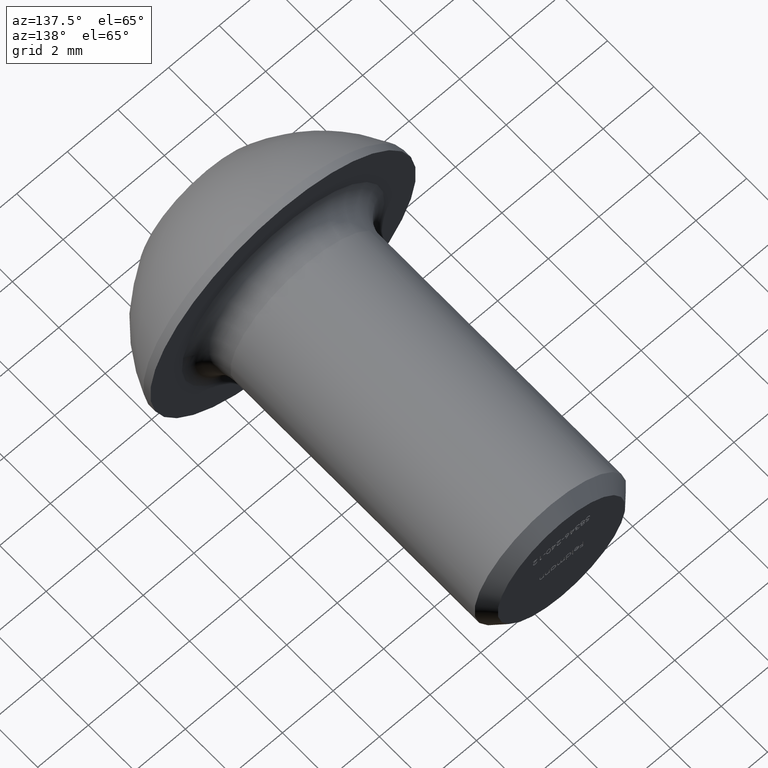
[diagram: clean part render]
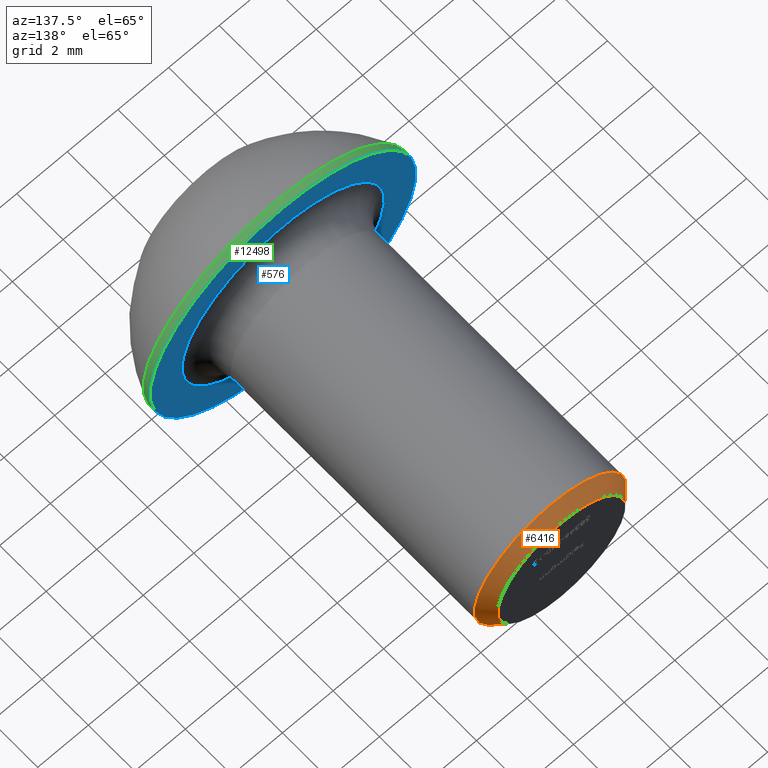
[diagram: same view with three faces highlighted in distinct colors, each labeled with its STEP entity id]
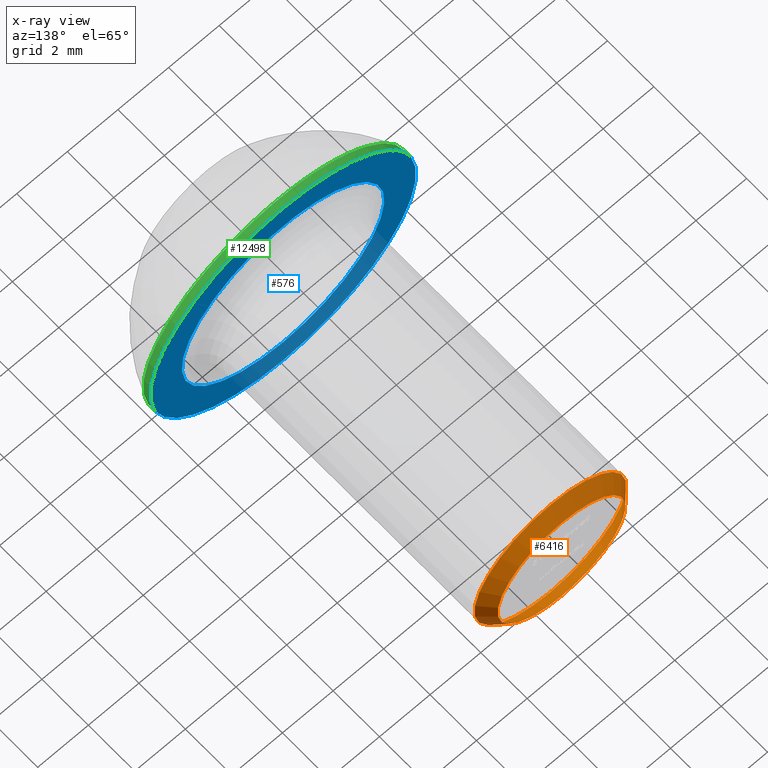
[diagram: x-ray of the same camera — body ghosted, the three highlighted faces saturated]
A machine part, auxiliary view with three faces highlighted in distinct colors.
The next image is the same camera in x-ray (body ghosted, the three faces saturated) — at least one of them is partly hidden behind the body in this view.
Their STEP definitions:

[orange] entity #6416 — the highlighted conical surface has half-angle 45 deg.
#462 = CARTESIAN_POINT ( 'NONE',  ( 0.0000000000000000000, 14.82270000000000800, -2.999999999999996400 ) ) ;
#1107 = DIRECTION ( 'NONE',  ( 0.0000000000000000000, 0.0000000000000000000, -1.000000000000000000 ) ) ;
#1665 = FACE_BOUND ( 'NONE', #9125, .T. ) ;
#2389 = CARTESIAN_POINT ( 'NONE',  ( 0.0000000000000000000, 15.30000000000000800, 0.0000000000000000000 ) ) ;
#3469 = CARTESIAN_POINT ( 'NONE',  ( 0.0000000000000000000, 14.82270000000000800, 0.0000000000000000000 ) ) ;
#3493 = CIRCLE ( 'NONE', #10737, 2.999999999999996400 ) ;
#3623 = DIRECTION ( 'NONE',  ( 0.0000000000000000000, 0.0000000000000000000, -1.000000000000000000 ) ) ;
#4521 = CIRCLE ( 'NONE', #9684, 2.522700000000003500 ) ;
#4915 = AXIS2_PLACEMENT_3D ( 'NONE', #2389, #9517, #3623 ) ;
#5231 = DIRECTION ( 'NONE',  ( 0.0000000000000000000, 0.0000000000000000000, -1.000000000000000000 ) ) ;
#5287 = CARTESIAN_POINT ( 'NONE',  ( 0.0000000000000000000, 15.30000000000000800, 0.0000000000000000000 ) ) ;
#5856 = VERTEX_POINT ( 'NONE', #462 ) ;
#6082 = CONICAL_SURFACE ( 'NONE', #4915, 2.522700000000003500, 0.7853981633974410600 ) ;
#6416 = ADVANCED_FACE ( 'NONE', ( #8681, #1665 ), #6082, .T. ) ;
#6791 = EDGE_CURVE ( 'NONE', #5856, #5856, #3493, .T. ) ;
#7468 = DIRECTION ( 'NONE',  ( -0.0000000000000000000, -1.000000000000000000, -0.0000000000000000000 ) ) ;
#8681 = FACE_OUTER_BOUND ( 'NONE', #10368, .T. ) ;
#9125 = EDGE_LOOP ( 'NONE', ( #9547 ) ) ;
#9517 = DIRECTION ( 'NONE',  ( -0.0000000000000000000, -1.000000000000000000, -0.0000000000000000000 ) ) ;
#9547 = ORIENTED_EDGE ( 'NONE', *, *, #12990, .T. ) ;
#9684 = AXIS2_PLACEMENT_3D ( 'NONE', #5287, #7468, #5231 ) ;
#10368 = EDGE_LOOP ( 'NONE', ( #12231 ) ) ;
#10737 = AXIS2_PLACEMENT_3D ( 'NONE', #3469, #11688, #1107 ) ;
#11688 = DIRECTION ( 'NONE',  ( -0.0000000000000000000, -1.000000000000000000, -0.0000000000000000000 ) ) ;
#12231 = ORIENTED_EDGE ( 'NONE', *, *, #6791, .F. ) ;
#12291 = CARTESIAN_POINT ( 'NONE',  ( 0.0000000000000000000, 15.30000000000000800, -2.522700000000003500 ) ) ;
#12658 = VERTEX_POINT ( 'NONE', #12291 ) ;
#12990 = EDGE_CURVE ( 'NONE', #12658, #12658, #4521, .T. ) ;

[blue] entity #576 — the highlighted planar face has unit normal (0, -1, -0).
#318 = CIRCLE ( 'NONE', #8803, 5.249999999999999100 ) ;
#576 = ADVANCED_FACE ( 'NONE', ( #4627, #2970 ), #3347, .F. ) ;
#2561 = CIRCLE ( 'NONE', #3335, 3.999999999999998200 ) ;
#2970 = FACE_OUTER_BOUND ( 'NONE', #6392, .T. ) ;
#3144 = DIRECTION ( 'NONE',  ( -0.0000000000000000000, -1.000000000000000000, -0.0000000000000000000 ) ) ;
#3335 = AXIS2_PLACEMENT_3D ( 'NONE', #13732, #3144, #10318 ) ;
#3347 = PLANE ( 'NONE',  #15106 ) ;
#4259 = EDGE_LOOP ( 'NONE', ( #9875 ) ) ;
#4352 = CARTESIAN_POINT ( 'NONE',  ( 0.0000000000000000000, 3.299999999999999800, 0.0000000000000000000 ) ) ;
#4548 = VERTEX_POINT ( 'NONE', #14626 ) ;
#4627 = FACE_BOUND ( 'NONE', #4259, .T. ) ;
#5751 = DIRECTION ( 'NONE',  ( 0.0000000000000000000, -1.000000000000000000, -0.0000000000000000000 ) ) ;
#6392 = EDGE_LOOP ( 'NONE', ( #7671 ) ) ;
#7322 = VERTEX_POINT ( 'NONE', #12191 ) ;
#7671 = ORIENTED_EDGE ( 'NONE', *, *, #10248, .F. ) ;
#8048 = DIRECTION ( 'NONE',  ( 0.0000000000000000000, 0.0000000000000000000, -1.000000000000000000 ) ) ;
#8803 = AXIS2_PLACEMENT_3D ( 'NONE', #4352, #10287, #9207 ) ;
#9207 = DIRECTION ( 'NONE',  ( 0.0000000000000000000, 0.0000000000000000000, -1.000000000000000000 ) ) ;
#9875 = ORIENTED_EDGE ( 'NONE', *, *, #13408, .T. ) ;
#10248 = EDGE_CURVE ( 'NONE', #7322, #7322, #318, .T. ) ;
#10287 = DIRECTION ( 'NONE',  ( -0.0000000000000000000, -1.000000000000000000, -0.0000000000000000000 ) ) ;
#10318 = DIRECTION ( 'NONE',  ( 0.0000000000000000000, 0.0000000000000000000, -1.000000000000000000 ) ) ;
#11565 = CARTESIAN_POINT ( 'NONE',  ( 2.999999999999999100, 3.299999999999999800, 0.0000000000000000000 ) ) ;
#12191 = CARTESIAN_POINT ( 'NONE',  ( 0.0000000000000000000, 3.299999999999999800, -5.249999999999999100 ) ) ;
#13408 = EDGE_CURVE ( 'NONE', #4548, #4548, #2561, .T. ) ;
#13732 = CARTESIAN_POINT ( 'NONE',  ( 0.0000000000000000000, 3.299999999999999800, 0.0000000000000000000 ) ) ;
#14626 = CARTESIAN_POINT ( 'NONE',  ( 0.0000000000000000000, 3.299999999999999800, -3.999999999999998200 ) ) ;
#15106 = AXIS2_PLACEMENT_3D ( 'NONE', #11565, #5751, #8048 ) ;

[green] entity #12498 — the highlighted cylindrical surface (bore or boss wall) has radius 5.25 mm, axis along (-0, -1, -0).
#318 = CIRCLE ( 'NONE', #8803, 5.249999999999999100 ) ;
#1402 = ORIENTED_EDGE ( 'NONE', *, *, #10248, .T. ) ;
#1667 = CARTESIAN_POINT ( 'NONE',  ( 0.0000000000000000000, 0.0000000000000000000, 0.0000000000000000000 ) ) ;
#1717 = DIRECTION ( 'NONE',  ( 0.0000000000000000000, 0.0000000000000000000, -1.000000000000000000 ) ) ;
#3000 = DIRECTION ( 'NONE',  ( -0.0000000000000000000, -1.000000000000000000, -0.0000000000000000000 ) ) ;
#3054 = ORIENTED_EDGE ( 'NONE', *, *, #7070, .F. ) ;
#4352 = CARTESIAN_POINT ( 'NONE',  ( 0.0000000000000000000, 3.299999999999999800, 0.0000000000000000000 ) ) ;
#4720 = FACE_OUTER_BOUND ( 'NONE', #13443, .T. ) ;
#7070 = EDGE_CURVE ( 'NONE', #9727, #9727, #10159, .T. ) ;
#7322 = VERTEX_POINT ( 'NONE', #12191 ) ;
#7574 = AXIS2_PLACEMENT_3D ( 'NONE', #7847, #3000, #8895 ) ;
#7847 = CARTESIAN_POINT ( 'NONE',  ( 0.0000000000000000000, 3.000000000000000000, 0.0000000000000000000 ) ) ;
#8803 = AXIS2_PLACEMENT_3D ( 'NONE', #4352, #10287, #9207 ) ;
#8895 = DIRECTION ( 'NONE',  ( 0.0000000000000000000, 0.0000000000000000000, -1.000000000000000000 ) ) ;
#9207 = DIRECTION ( 'NONE',  ( 0.0000000000000000000, 0.0000000000000000000, -1.000000000000000000 ) ) ;
#9353 = FACE_OUTER_BOUND ( 'NONE', #13055, .T. ) ;
#9521 = CYLINDRICAL_SURFACE ( 'NONE', #11366, 5.249999999999999100 ) ;
#9727 = VERTEX_POINT ( 'NONE', #13315 ) ;
#10159 = CIRCLE ( 'NONE', #7574, 5.249999999999999100 ) ;
#10248 = EDGE_CURVE ( 'NONE', #7322, #7322, #318, .T. ) ;
#10287 = DIRECTION ( 'NONE',  ( -0.0000000000000000000, -1.000000000000000000, -0.0000000000000000000 ) ) ;
#11366 = AXIS2_PLACEMENT_3D ( 'NONE', #1667, #14582, #1717 ) ;
#12191 = CARTESIAN_POINT ( 'NONE',  ( 0.0000000000000000000, 3.299999999999999800, -5.249999999999999100 ) ) ;
#12498 = ADVANCED_FACE ( 'NONE', ( #9353, #4720 ), #9521, .T. ) ;
#13055 = EDGE_LOOP ( 'NONE', ( #3054 ) ) ;
#13315 = CARTESIAN_POINT ( 'NONE',  ( 0.0000000000000000000, 3.000000000000000000, -5.249999999999999100 ) ) ;
#13443 = EDGE_LOOP ( 'NONE', ( #1402 ) ) ;
#14582 = DIRECTION ( 'NONE',  ( -0.0000000000000000000, -1.000000000000000000, -0.0000000000000000000 ) ) ;